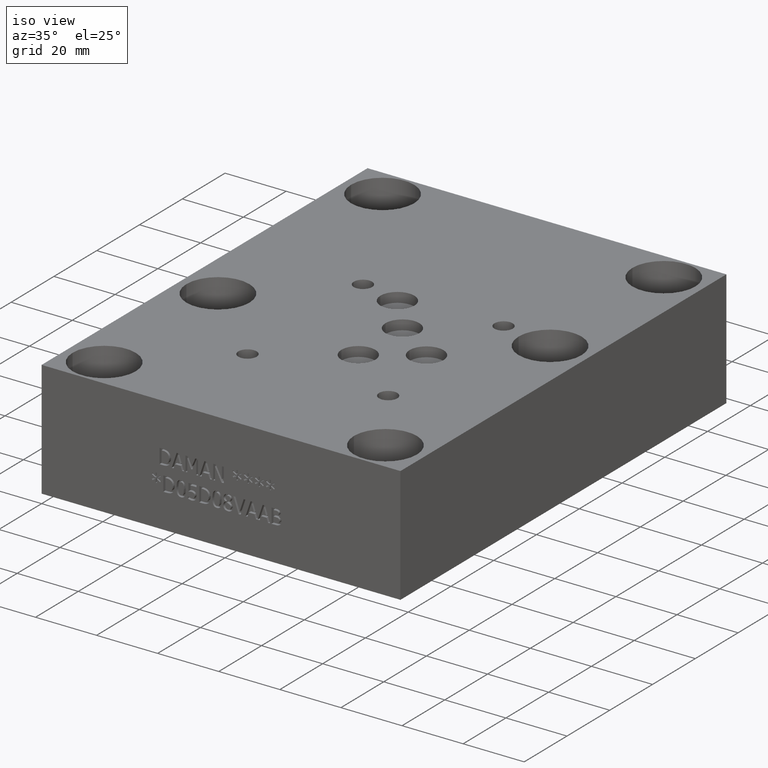
[diagram: clean part render]
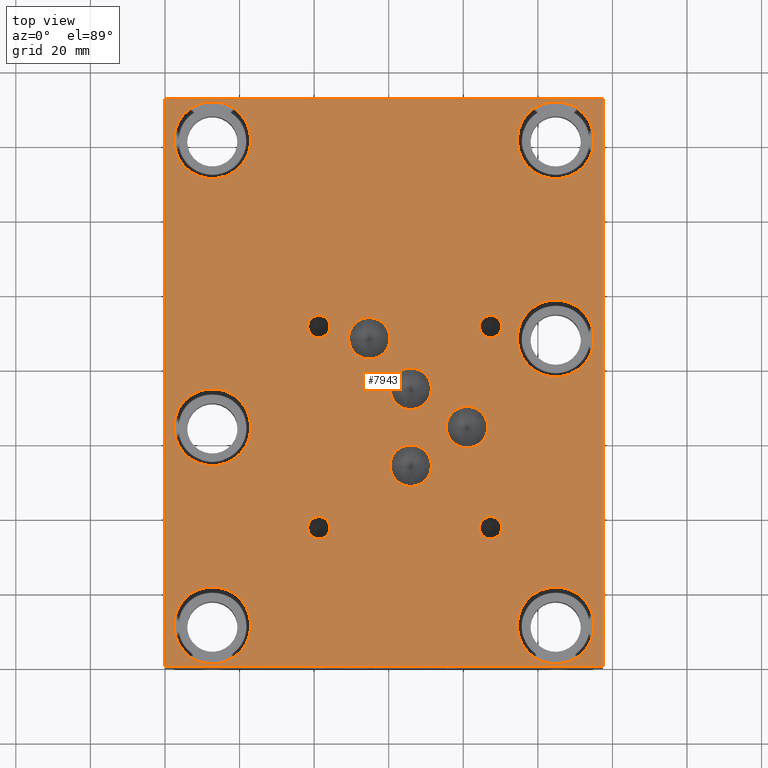
[diagram: tour spotlight — one face highlighted and labeled with its STEP entity id]
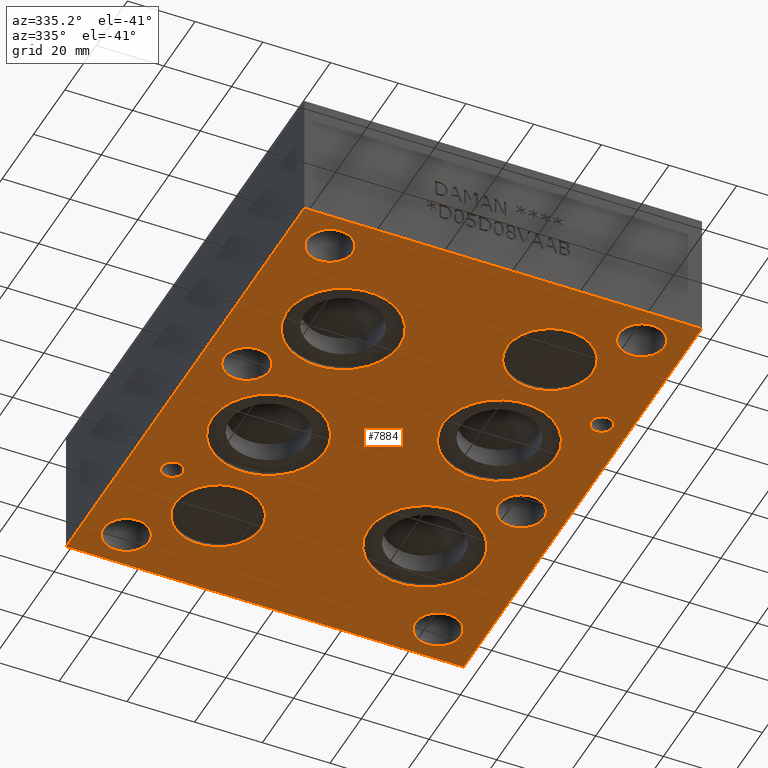
[diagram: tour spotlight — one face highlighted and labeled with its STEP entity id]
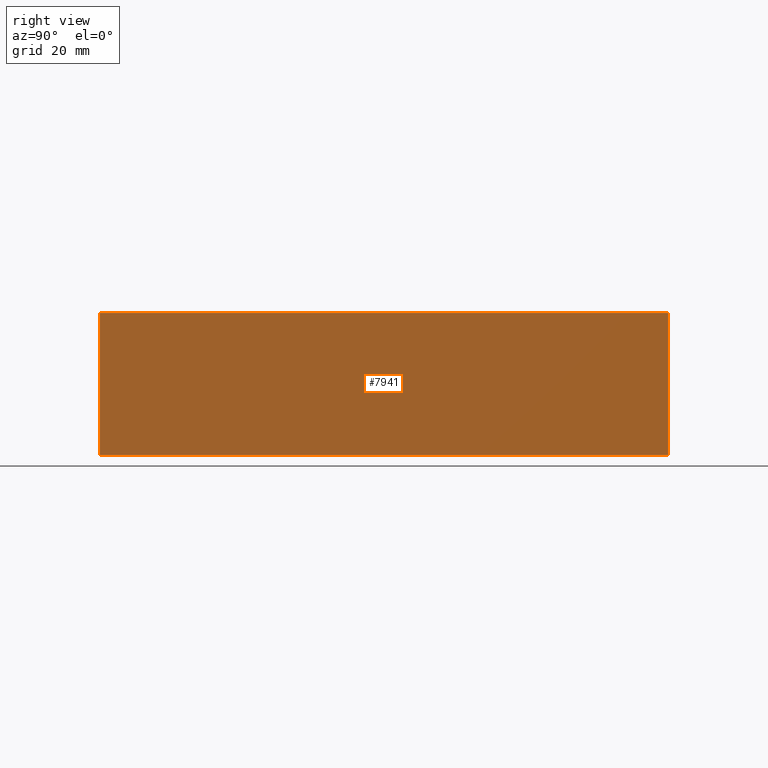
[diagram: tour spotlight — one face highlighted and labeled with its STEP entity id]
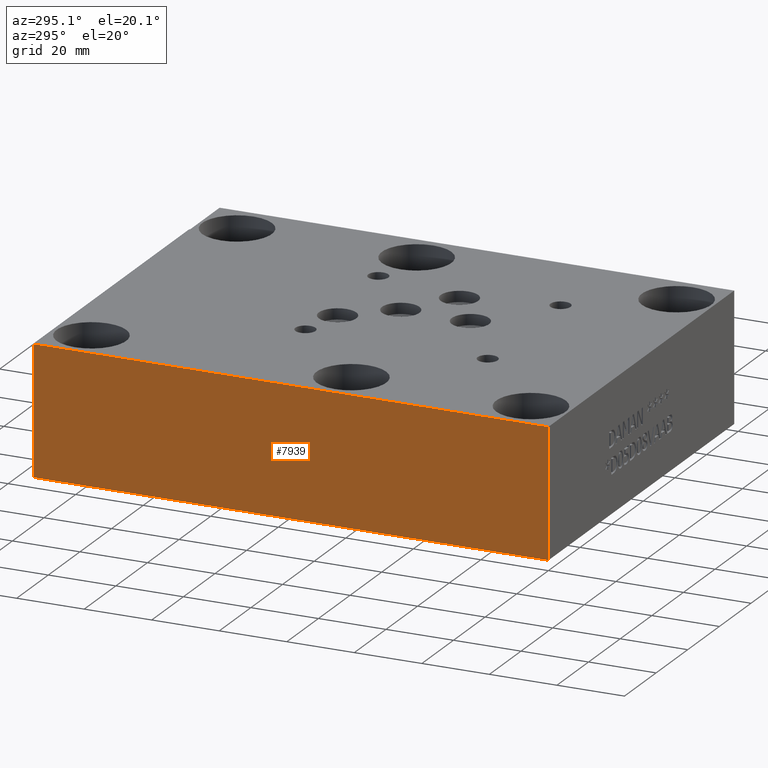
[diagram: tour spotlight — one face highlighted and labeled with its STEP entity id]
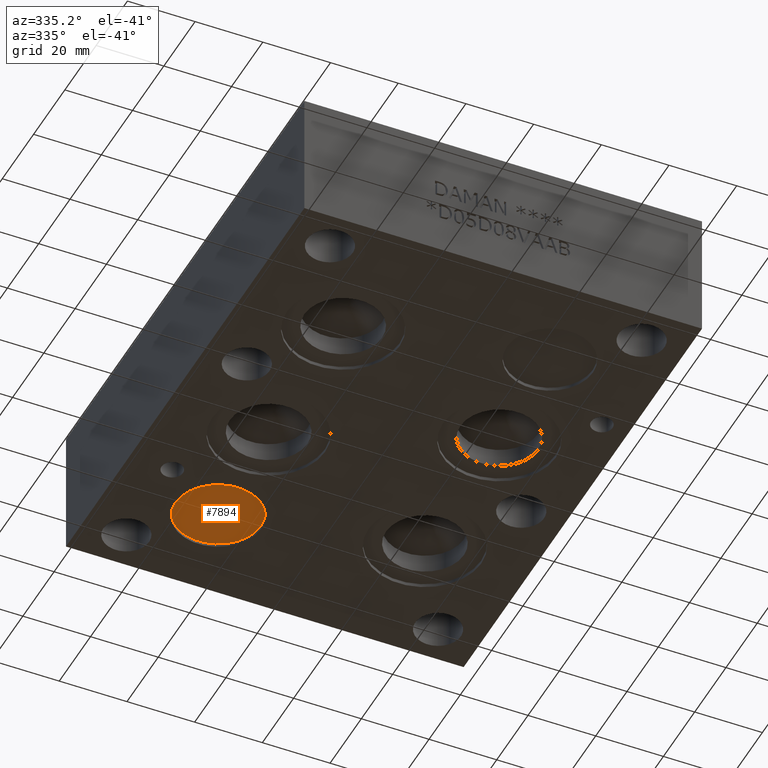
[diagram: tour spotlight — one face highlighted and labeled with its STEP entity id]
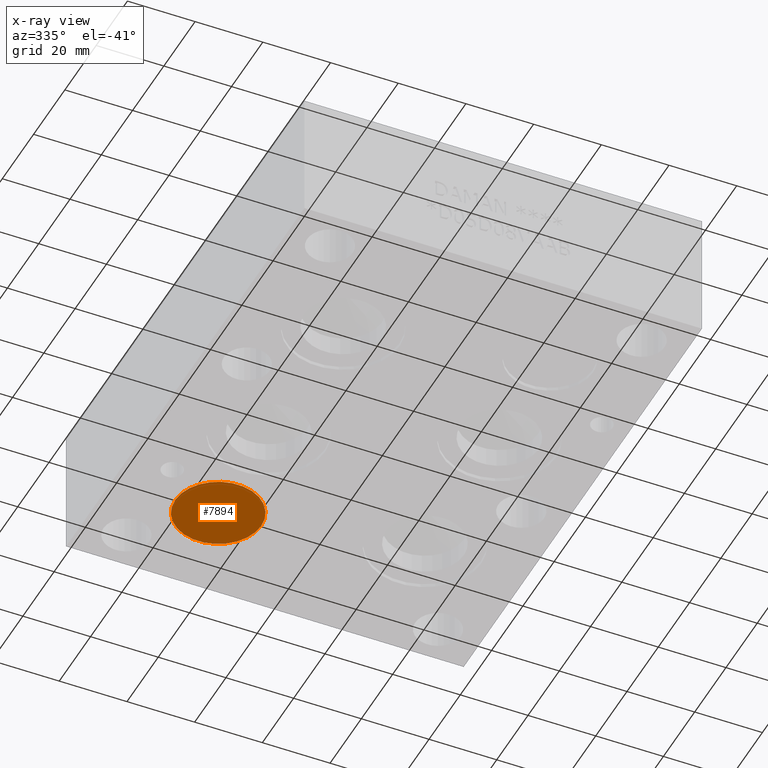
[diagram: x-ray of the same camera — body ghosted, this tour face saturated]
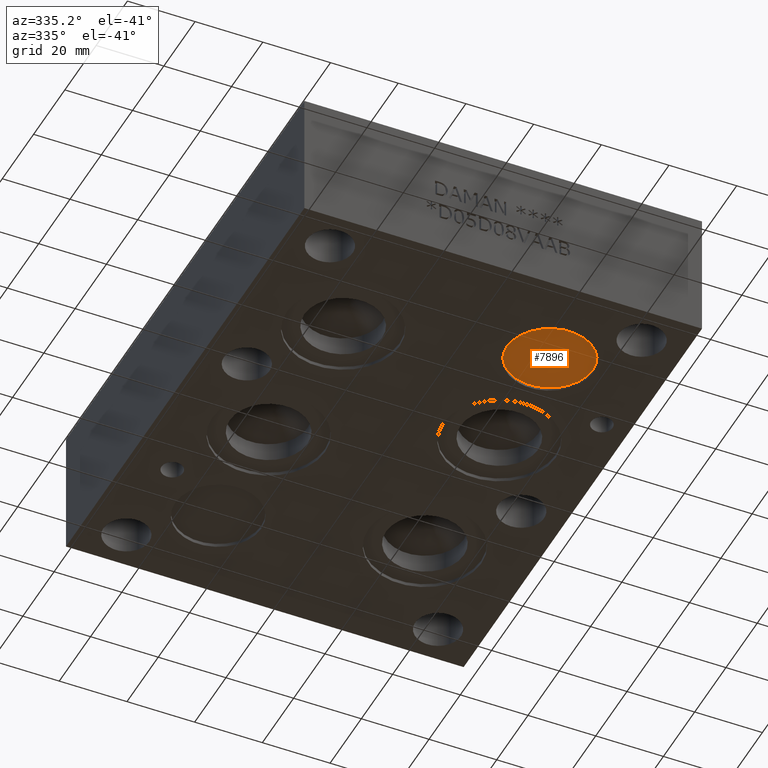
[diagram: tour spotlight — one face highlighted and labeled with its STEP entity id]
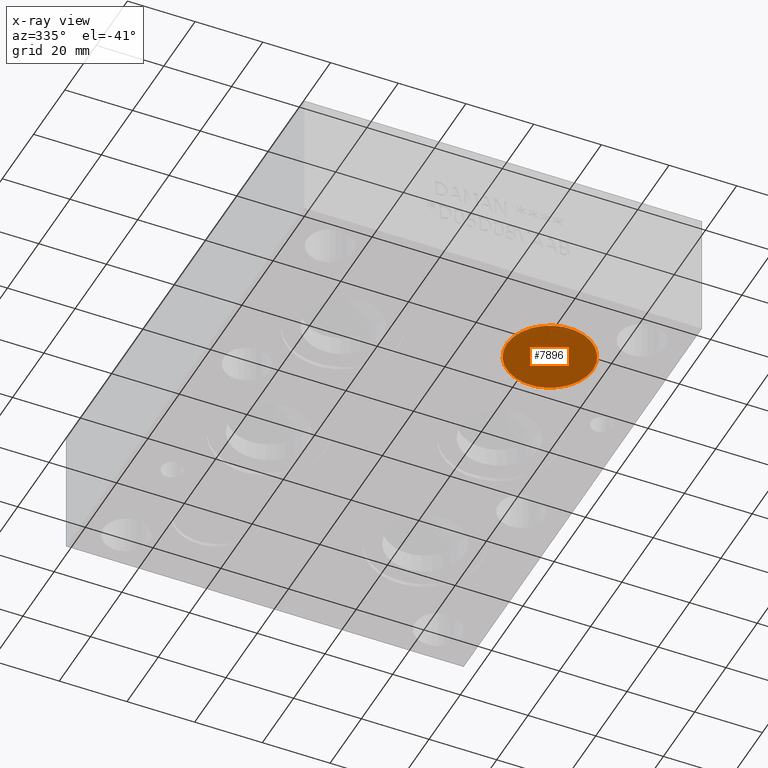
[diagram: x-ray of the same camera — body ghosted, this tour face saturated]
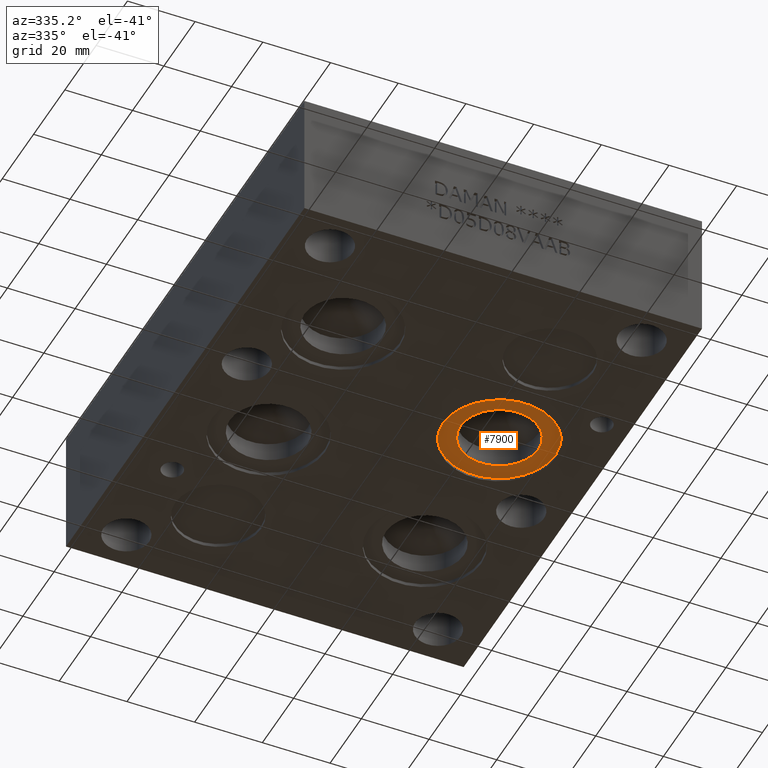
[diagram: tour spotlight — one face highlighted and labeled with its STEP entity id]
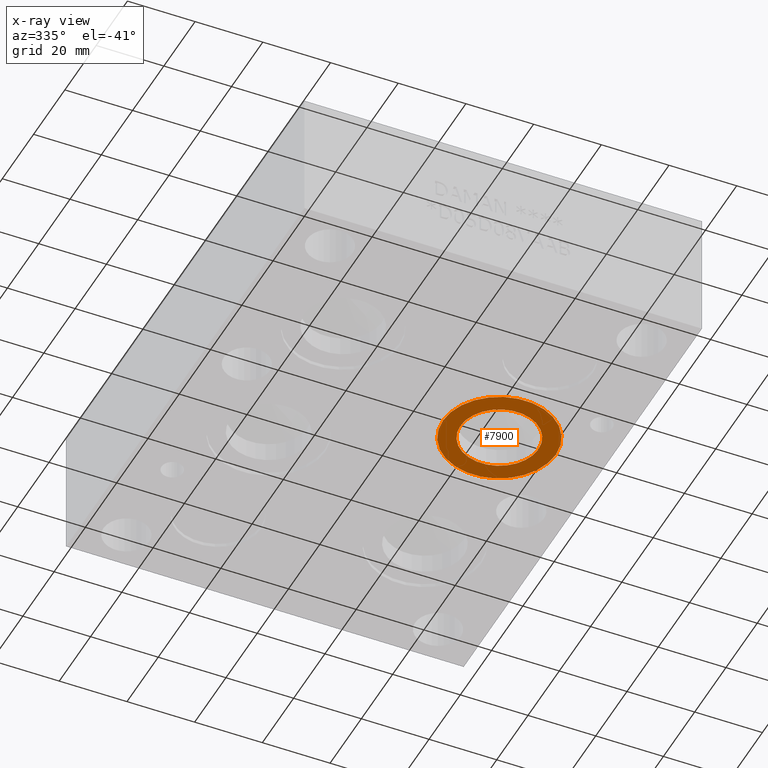
[diagram: x-ray of the same camera — body ghosted, this tour face saturated]
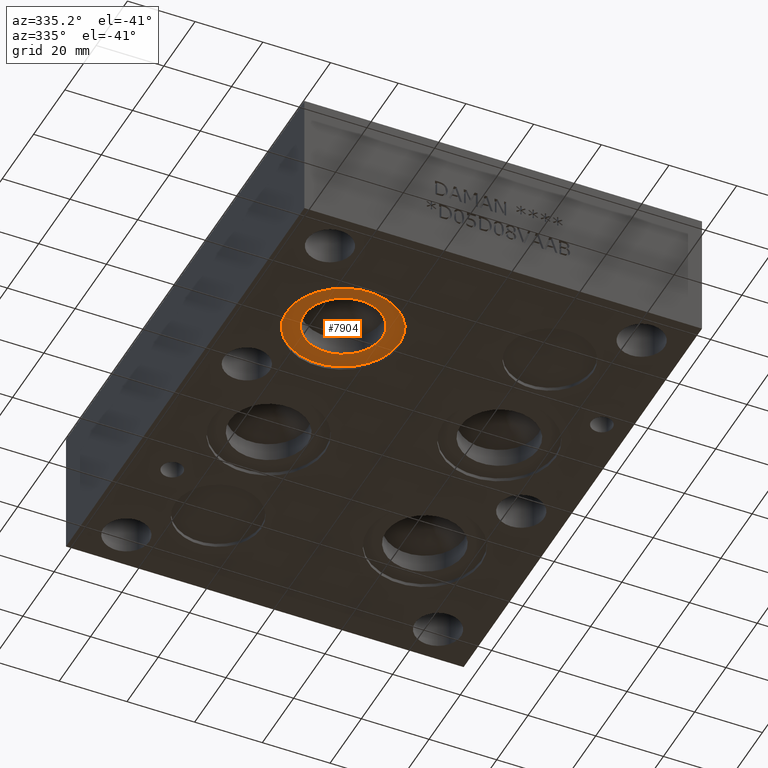
[diagram: tour spotlight — one face highlighted and labeled with its STEP entity id]
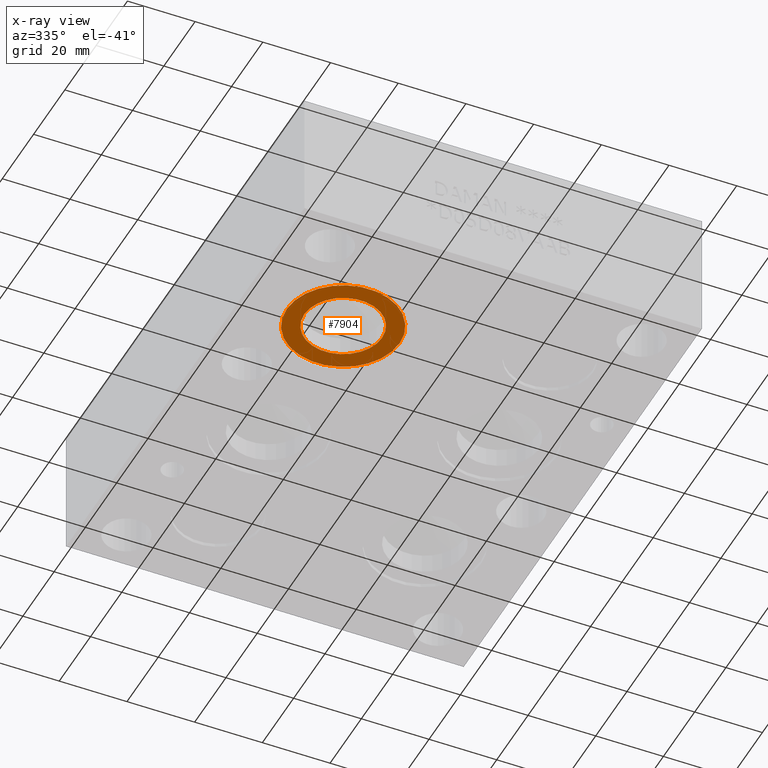
[diagram: x-ray of the same camera — body ghosted, this tour face saturated]
A machine part: a face-by-face anatomy tour. The part has 404 B-rep faces; the first image is the clean iso view, then the 8 largest visible faces are spotlighted one at a time (largest first), each with its STEP entity span.

Face 1 — top view, entity #7943. In plain terms, the highlighted planar face has unit normal (0, 0, 1).
Definition (entity closure, byte-faithful):
#33=CIRCLE('',#8198,10.3124);
#34=CIRCLE('',#8199,10.3124);
#40=CIRCLE('',#8208,10.3124);
#41=CIRCLE('',#8209,10.3124);
#47=CIRCLE('',#8218,10.3124);
#48=CIRCLE('',#8219,10.3124);
#54=CIRCLE('',#8228,10.3124);
#55=CIRCLE('',#8229,10.3124);
#61=CIRCLE('',#8238,10.3124);
#62=CIRCLE('',#8239,10.3124);
#68=CIRCLE('',#8248,10.3124);
#69=CIRCLE('',#8249,10.3124);
#122=CIRCLE('',#8335,5.55625);
#123=CIRCLE('',#8336,5.55625);
#126=CIRCLE('',#8341,5.55625);
#127=CIRCLE('',#8342,5.55625);
#130=CIRCLE('',#8347,5.5626);
#131=CIRCLE('',#8348,5.5626);
#134=CIRCLE('',#8353,5.5626);
#135=CIRCLE('',#8354,5.5626);
#141=CIRCLE('',#8363,2.9972);
#142=CIRCLE('',#8364,2.9972);
#148=CIRCLE('',#8374,2.9972);
#149=CIRCLE('',#8375,2.9972);
#155=CIRCLE('',#8385,2.9972);
#156=CIRCLE('',#8386,2.9972);
#162=CIRCLE('',#8396,2.9972);
#163=CIRCLE('',#8397,2.9972);
#266=FACE_BOUND('',#1430,.T.);
#267=FACE_BOUND('',#1431,.T.);
#268=FACE_BOUND('',#1432,.T.);
#269=FACE_BOUND('',#1433,.T.);
#270=FACE_BOUND('',#1434,.T.);
#271=FACE_BOUND('',#1435,.T.);
#272=FACE_BOUND('',#1436,.T.);
#273=FACE_BOUND('',#1437,.T.);
#274=FACE_BOUND('',#1438,.T.);
#275=FACE_BOUND('',#1439,.T.);
#276=FACE_BOUND('',#1440,.T.);
#277=FACE_BOUND('',#1441,.T.);
#278=FACE_BOUND('',#1442,.T.);
#279=FACE_BOUND('',#1443,.T.);
#965=FACE_OUTER_BOUND('',#1429,.T.);
#1429=EDGE_LOOP('',(#6940,#6941,#6942,#6943));
#1430=EDGE_LOOP('',(#6944,#6945));
#1431=EDGE_LOOP('',(#6946,#6947));
#1432=EDGE_LOOP('',(#6948,#6949));
#1433=EDGE_LOOP('',(#6950,#6951));
#1434=EDGE_LOOP('',(#6952,#6953));
#1435=EDGE_LOOP('',(#6954,#6955));
#1436=EDGE_LOOP('',(#6956,#6957));
#1437=EDGE_LOOP('',(#6958,#6959));
#1438=EDGE_LOOP('',(#6960,#6961));
#1439=EDGE_LOOP('',(#6962,#6963));
#1440=EDGE_LOOP('',(#6964,#6965));
#1441=EDGE_LOOP('',(#6966,#6967));
#1442=EDGE_LOOP('',(#6968,#6969));
#1443=EDGE_LOOP('',(#6970,#6971));
#1763=LINE('',#12174,#2525);
#2201=LINE('',#13509,#2963);
#2203=LINE('',#13513,#2965);
#2205=LINE('',#13516,#2967);
#2525=VECTOR('',#8901,10.);
#2963=VECTOR('',#10047,10.);
#2965=VECTOR('',#10051,10.);
#2967=VECTOR('',#10055,10.);
#3296=VERTEX_POINT('',#12171);
#3297=VERTEX_POINT('',#12173);
#3566=VERTEX_POINT('',#13103);
#3567=VERTEX_POINT('',#13104);
#3574=VERTEX_POINT('',#13124);
#3575=VERTEX_POINT('',#13125);
#3582=VERTEX_POINT('',#13145);
#3583=VERTEX_POINT('',#13146);
#3590=VERTEX_POINT('',#13166);
#3591=VERTEX_POINT('',#13167);
#3598=VERTEX_POINT('',#13187);
#3599=VERTEX_POINT('',#13188);
#3606=VERTEX_POINT('',#13208);
#3607=VERTEX_POINT('',#13209);
#3663=VERTEX_POINT('',#13375);
#3664=VERTEX_POINT('',#13376);
#3668=VERTEX_POINT('',#13388);
#3669=VERTEX_POINT('',#13389);
#3673=VERTEX_POINT('',#13401);
#3674=VERTEX_POINT('',#13402);
#3678=VERTEX_POINT('',#13414);
#3679=VERTEX_POINT('',#13415);
#3686=VERTEX_POINT('',#13434);
#3687=VERTEX_POINT('',#13435);
#3694=VERTEX_POINT('',#13456);
#3695=VERTEX_POINT('',#13457);
#3702=VERTEX_POINT('',#13478);
#3703=VERTEX_POINT('',#13479);
#3710=VERTEX_POINT('',#13500);
#3711=VERTEX_POINT('',#13501);
#3712=VERTEX_POINT('',#13508);
#3713=VERTEX_POINT('',#13512);
#4205=EDGE_CURVE('',#3297,#3296,#1763,.T.);
#4607=EDGE_CURVE('',#3566,#3567,#33,.T.);
#4608=EDGE_CURVE('',#3567,#3566,#34,.T.);
#4617=EDGE_CURVE('',#3574,#3575,#40,.T.);
#4618=EDGE_CURVE('',#3575,#3574,#41,.T.);
#4627=EDGE_CURVE('',#3582,#3583,#47,.T.);
#4628=EDGE_CURVE('',#3583,#3582,#48,.T.);
#4637=EDGE_CURVE('',#3590,#3591,#54,.T.);
#4638=EDGE_CURVE('',#3591,#3590,#55,.T.);
#4647=EDGE_CURVE('',#3598,#3599,#61,.T.);
#4648=EDGE_CURVE('',#3599,#3598,#62,.T.);
#4657=EDGE_CURVE('',#3606,#3607,#68,.T.);
#4658=EDGE_CURVE('',#3607,#3606,#69,.T.);
#4734=EDGE_CURVE('',#3663,#3664,#122,.T.);
#4735=EDGE_CURVE('',#3664,#3663,#123,.T.);
#4740=EDGE_CURVE('',#3668,#3669,#126,.T.);
#4741=EDGE_CURVE('',#3669,#3668,#127,.T.);
#4746=EDGE_CURVE('',#3673,#3674,#130,.T.);
#4747=EDGE_CURVE('',#3674,#3673,#131,.T.);
#4752=EDGE_CURVE('',#3678,#3679,#134,.T.);
#4753=EDGE_CURVE('',#3679,#3678,#135,.T.);
#4761=EDGE_CURVE('',#3686,#3687,#141,.T.);
#4762=EDGE_CURVE('',#3687,#3686,#142,.T.);
#4771=EDGE_CURVE('',#3694,#3695,#148,.T.);
#4772=EDGE_CURVE('',#3695,#3694,#149,.T.);
#4781=EDGE_CURVE('',#3702,#3703,#155,.T.);
#4782=EDGE_CURVE('',#3703,#3702,#156,.T.);
#4791=EDGE_CURVE('',#3710,#3711,#162,.T.);
#4792=EDGE_CURVE('',#3711,#3710,#163,.T.);
#4795=EDGE_CURVE('',#3712,#3297,#2201,.T.);
#4797=EDGE_CURVE('',#3713,#3712,#2203,.T.);
#4799=EDGE_CURVE('',#3296,#3713,#2205,.T.);
#6940=ORIENTED_EDGE('',*,*,#4205,.T.);
#6941=ORIENTED_EDGE('',*,*,#4799,.T.);
#6942=ORIENTED_EDGE('',*,*,#4797,.T.);
#6943=ORIENTED_EDGE('',*,*,#4795,.T.);
#6944=ORIENTED_EDGE('',*,*,#4607,.T.);
#6945=ORIENTED_EDGE('',*,*,#4608,.T.);
#6946=ORIENTED_EDGE('',*,*,#4617,.T.);
#6947=ORIENTED_EDGE('',*,*,#4618,.T.);
#6948=ORIENTED_EDGE('',*,*,#4627,.T.);
#6949=ORIENTED_EDGE('',*,*,#4628,.T.);
#6950=ORIENTED_EDGE('',*,*,#4637,.T.);
#6951=ORIENTED_EDGE('',*,*,#4638,.T.);
#6952=ORIENTED_EDGE('',*,*,#4647,.T.);
#6953=ORIENTED_EDGE('',*,*,#4648,.T.);
#6954=ORIENTED_EDGE('',*,*,#4657,.T.);
#6955=ORIENTED_EDGE('',*,*,#4658,.T.);
#6956=ORIENTED_EDGE('',*,*,#4734,.T.);
#6957=ORIENTED_EDGE('',*,*,#4735,.T.);
#6958=ORIENTED_EDGE('',*,*,#4740,.T.);
#6959=ORIENTED_EDGE('',*,*,#4741,.T.);
#6960=ORIENTED_EDGE('',*,*,#4746,.T.);
#6961=ORIENTED_EDGE('',*,*,#4747,.T.);
#6962=ORIENTED_EDGE('',*,*,#4752,.T.);
#6963=ORIENTED_EDGE('',*,*,#4753,.T.);
#6964=ORIENTED_EDGE('',*,*,#4761,.T.);
#6965=ORIENTED_EDGE('',*,*,#4762,.T.);
#6966=ORIENTED_EDGE('',*,*,#4771,.T.);
#6967=ORIENTED_EDGE('',*,*,#4772,.T.);
#6968=ORIENTED_EDGE('',*,*,#4781,.T.);
#6969=ORIENTED_EDGE('',*,*,#4782,.T.);
#6970=ORIENTED_EDGE('',*,*,#4791,.T.);
#6971=ORIENTED_EDGE('',*,*,#4792,.T.);
#7225=PLANE('',#8403);
#7943=ADVANCED_FACE('',(#965,#266,#267,#268,#269,#270,#271,#272,#273,#274,
#275,#276,#277,#278,#279),#7225,.T.);
#8198=AXIS2_PLACEMENT_3D('',#13105,#9586,#9587);
#8199=AXIS2_PLACEMENT_3D('',#13106,#9588,#9589);
#8208=AXIS2_PLACEMENT_3D('',#13126,#9609,#9610);
#8209=AXIS2_PLACEMENT_3D('',#13127,#9611,#9612);
#8218=AXIS2_PLACEMENT_3D('',#13147,#9632,#9633);
#8219=AXIS2_PLACEMENT_3D('',#13148,#9634,#9635);
#8228=AXIS2_PLACEMENT_3D('',#13168,#9655,#9656);
#8229=AXIS2_PLACEMENT_3D('',#13169,#9657,#9658);
#8238=AXIS2_PLACEMENT_3D('',#13189,#9678,#9679);
#8239=AXIS2_PLACEMENT_3D('',#13190,#9680,#9681);
#8248=AXIS2_PLACEMENT_3D('',#13210,#9701,#9702);
#8249=AXIS2_PLACEMENT_3D('',#13211,#9703,#9704);
#8335=AXIS2_PLACEMENT_3D('',#13377,#9898,#9899);
#8336=AXIS2_PLACEMENT_3D('',#13378,#9900,#9901);
#8341=AXIS2_PLACEMENT_3D('',#13390,#9912,#9913);
#8342=AXIS2_PLACEMENT_3D('',#13391,#9914,#9915);
#8347=AXIS2_PLACEMENT_3D('',#13403,#9926,#9927);
#8348=AXIS2_PLACEMENT_3D('',#13404,#9928,#9929);
#8353=AXIS2_PLACEMENT_3D('',#13416,#9940,#9941);
#8354=AXIS2_PLACEMENT_3D('',#13417,#9942,#9943);
#8363=AXIS2_PLACEMENT_3D('',#13436,#9962,#9963);
#8364=AXIS2_PLACEMENT_3D('',#13437,#9964,#9965);
#8374=AXIS2_PLACEMENT_3D('',#13458,#9987,#9988);
#8375=AXIS2_PLACEMENT_3D('',#13459,#9989,#9990);
#8385=AXIS2_PLACEMENT_3D('',#13480,#10012,#10013);
#8386=AXIS2_PLACEMENT_3D('',#13481,#10014,#10015);
#8396=AXIS2_PLACEMENT_3D('',#13502,#10037,#10038);
#8397=AXIS2_PLACEMENT_3D('',#13503,#10039,#10040);
#8403=AXIS2_PLACEMENT_3D('',#13518,#10058,#10059);
#8901=DIRECTION('',(1.,0.,0.));
#9586=DIRECTION('center_axis',(0.,0.,-1.));
#9587=DIRECTION('ref_axis',(1.,0.,0.));
#9588=DIRECTION('center_axis',(0.,0.,-1.));
#9589=DIRECTION('ref_axis',(1.,0.,0.));
#9609=DIRECTION('center_axis',(0.,0.,-1.));
#9610=DIRECTION('ref_axis',(1.,0.,0.));
#9611=DIRECTION('center_axis',(0.,0.,-1.));
#9612=DIRECTION('ref_axis',(1.,0.,0.));
#9632=DIRECTION('center_axis',(0.,0.,-1.));
#9633=DIRECTION('ref_axis',(1.,0.,0.));
#9634=DIRECTION('center_axis',(0.,0.,-1.));
#9635=DIRECTION('ref_axis',(1.,0.,0.));
#9655=DIRECTION('center_axis',(0.,0.,-1.));
#9656=DIRECTION('ref_axis',(1.,0.,0.));
#9657=DIRECTION('center_axis',(0.,0.,-1.));
#9658=DIRECTION('ref_axis',(1.,0.,0.));
#9678=DIRECTION('center_axis',(0.,0.,-1.));
#9679=DIRECTION('ref_axis',(1.,0.,0.));
#9680=DIRECTION('center_axis',(0.,0.,-1.));
#9681=DIRECTION('ref_axis',(1.,0.,0.));
#9701=DIRECTION('center_axis',(0.,0.,-1.));
#9702=DIRECTION('ref_axis',(1.,0.,0.));
#9703=DIRECTION('center_axis',(0.,0.,-1.));
#9704=DIRECTION('ref_axis',(1.,0.,0.));
#9898=DIRECTION('center_axis',(0.,0.,-1.));
#9899=DIRECTION('ref_axis',(1.,0.,0.));
#9900=DIRECTION('center_axis',(0.,0.,-1.));
#9901=DIRECTION('ref_axis',(1.,0.,0.));
#9912=DIRECTION('center_axis',(0.,0.,-1.));
#9913=DIRECTION('ref_axis',(1.,0.,0.));
#9914=DIRECTION('center_axis',(0.,0.,-1.));
#9915=DIRECTION('ref_axis',(1.,0.,0.));
#9926=DIRECTION('center_axis',(0.,0.,-1.));
#9927=DIRECTION('ref_axis',(1.,0.,0.));
#9928=DIRECTION('center_axis',(0.,0.,-1.));
#9929=DIRECTION('ref_axis',(1.,0.,0.));
#9940=DIRECTION('center_axis',(0.,0.,-1.));
#9941=DIRECTION('ref_axis',(1.,0.,0.));
#9942=DIRECTION('center_axis',(0.,0.,-1.));
#9943=DIRECTION('ref_axis',(1.,0.,0.));
#9962=DIRECTION('center_axis',(0.,0.,-1.));
#9963=DIRECTION('ref_axis',(1.,0.,0.));
#9964=DIRECTION('center_axis',(0.,0.,-1.));
#9965=DIRECTION('ref_axis',(1.,0.,0.));
#9987=DIRECTION('center_axis',(0.,0.,-1.));
#9988=DIRECTION('ref_axis',(1.,0.,0.));
#9989=DIRECTION('center_axis',(0.,0.,-1.));
#9990=DIRECTION('ref_axis',(1.,0.,0.));
#10012=DIRECTION('center_axis',(0.,0.,-1.));
#10013=DIRECTION('ref_axis',(1.,0.,0.));
#10014=DIRECTION('center_axis',(0.,0.,-1.));
#10015=DIRECTION('ref_axis',(1.,0.,0.));
#10037=DIRECTION('center_axis',(0.,0.,-1.));
#10038=DIRECTION('ref_axis',(1.,0.,0.));
#10039=DIRECTION('center_axis',(0.,0.,-1.));
#10040=DIRECTION('ref_axis',(1.,0.,0.));
#10047=DIRECTION('',(0.,-1.,0.));
#10051=DIRECTION('',(-1.,0.,0.));
#10055=DIRECTION('',(0.,1.,0.));
#10058=DIRECTION('center_axis',(0.,0.,1.));
#10059=DIRECTION('ref_axis',(1.,0.,0.));
#12171=CARTESIAN_POINT('',(117.475,0.,38.1));
#12173=CARTESIAN_POINT('',(0.,0.,38.1));
#12174=CARTESIAN_POINT('',(0.,0.,38.1));
#13103=CARTESIAN_POINT('',(23.0124,11.1125,38.1));
#13104=CARTESIAN_POINT('',(2.3876,11.1125,38.1));
#13105=CARTESIAN_POINT('Origin',(12.7,11.1125,38.1));
#13106=CARTESIAN_POINT('Origin',(12.7,11.1125,38.1));
#13124=CARTESIAN_POINT('',(115.0874,88.10625,38.1));
#13125=CARTESIAN_POINT('',(94.4626,88.10625,38.1));
#13126=CARTESIAN_POINT('Origin',(104.775,88.10625,38.1));
#13127=CARTESIAN_POINT('Origin',(104.775,88.10625,38.1));
#13145=CARTESIAN_POINT('',(23.0124,141.2875,38.1));
#13146=CARTESIAN_POINT('',(2.3876,141.2875,38.1));
#13147=CARTESIAN_POINT('Origin',(12.7,141.2875,38.1));
#13148=CARTESIAN_POINT('Origin',(12.7,141.2875,38.1));
#13166=CARTESIAN_POINT('',(115.0874,141.2875,38.1));
#13167=CARTESIAN_POINT('',(94.4626,141.2875,38.1));
#13168=CARTESIAN_POINT('Origin',(104.775,141.2875,38.1));
#13169=CARTESIAN_POINT('Origin',(104.775,141.2875,38.1));
#13187=CARTESIAN_POINT('',(115.0874,11.1125,38.1));
#13188=CARTESIAN_POINT('',(94.4626,11.1125,38.1));
#13189=CARTESIAN_POINT('Origin',(104.775,11.1125,38.1));
#13190=CARTESIAN_POINT('Origin',(104.775,11.1125,38.1));
#13208=CARTESIAN_POINT('',(23.0124,64.29375,38.1));
#13209=CARTESIAN_POINT('',(2.3876,64.29375,38.1));
#13210=CARTESIAN_POINT('Origin',(12.7,64.29375,38.1));
#13211=CARTESIAN_POINT('Origin',(12.7,64.29375,38.1));
#13375=CARTESIAN_POINT('',(71.45655,74.60488,38.1));
#13376=CARTESIAN_POINT('',(60.34405,74.60488,38.1));
#13377=CARTESIAN_POINT('Origin',(65.9003,74.60488,38.1));
#13378=CARTESIAN_POINT('Origin',(65.9003,74.60488,38.1));
#13388=CARTESIAN_POINT('',(71.46163,53.96992,38.1));
#13389=CARTESIAN_POINT('',(60.34913,53.96992,38.1));
#13390=CARTESIAN_POINT('Origin',(65.90538,53.96992,38.1));
#13391=CARTESIAN_POINT('Origin',(65.90538,53.96992,38.1));
#13401=CARTESIAN_POINT('',(86.5632,64.2874,38.1));
#13402=CARTESIAN_POINT('',(75.438,64.2874,38.1));
#13403=CARTESIAN_POINT('Origin',(81.0006,64.2874,38.1));
#13404=CARTESIAN_POINT('Origin',(81.0006,64.2874,38.1));
#13414=CARTESIAN_POINT('',(60.3504,88.1126,38.1));
#13415=CARTESIAN_POINT('',(49.2252,88.1126,38.1));
#13416=CARTESIAN_POINT('Origin',(54.7878,88.1126,38.1));
#13417=CARTESIAN_POINT('Origin',(54.7878,88.1126,38.1));
#13434=CARTESIAN_POINT('',(90.3224,37.3253,38.1));
#13435=CARTESIAN_POINT('',(84.328,37.3253,38.1));
#13436=CARTESIAN_POINT('Origin',(87.3252,37.3253,38.1));
#13437=CARTESIAN_POINT('Origin',(87.3252,37.3253,38.1));
#13456=CARTESIAN_POINT('',(44.2722,91.2876,38.1));
#13457=CARTESIAN_POINT('',(38.2778,91.2876,38.1));
#13458=CARTESIAN_POINT('Origin',(41.275,91.2876,38.1));
#13459=CARTESIAN_POINT('Origin',(41.275,91.2876,38.1));
#13478=CARTESIAN_POINT('',(90.3224,91.2876,38.1));
#13479=CARTESIAN_POINT('',(84.328,91.2876,38.1));
#13480=CARTESIAN_POINT('Origin',(87.3252,91.2876,38.1));
#13481=CARTESIAN_POINT('Origin',(87.3252,91.2876,38.1));
#13500=CARTESIAN_POINT('',(44.2722,37.3126,38.1));
#13501=CARTESIAN_POINT('',(38.2778,37.3126,38.1));
#13502=CARTESIAN_POINT('Origin',(41.275,37.3126,38.1));
#13503=CARTESIAN_POINT('Origin',(41.275,37.3126,38.1));
#13508=CARTESIAN_POINT('',(0.,152.4,38.1));
#13509=CARTESIAN_POINT('',(0.,152.4,38.1));
#13512=CARTESIAN_POINT('',(117.475,152.4,38.1));
#13513=CARTESIAN_POINT('',(117.475,152.4,38.1));
#13516=CARTESIAN_POINT('',(117.475,0.,38.1));
#13518=CARTESIAN_POINT('Origin',(58.7375,76.2,38.1));

Face 2 — auxiliary view, entity #7884. In plain terms, the highlighted planar face has unit normal (0, 0, 1).
Definition (entity closure, byte-faithful):
#29=CIRCLE('',#8192,6.7437);
#36=CIRCLE('',#8202,6.7437);
#43=CIRCLE('',#8212,6.7437);
#50=CIRCLE('',#8222,6.7437);
#57=CIRCLE('',#8232,6.7437);
#64=CIRCLE('',#8242,6.7437);
#70=CIRCLE('',#8251,12.7);
#71=CIRCLE('',#8252,12.7);
#72=CIRCLE('',#8253,12.7);
#73=CIRCLE('',#8254,12.7);
#74=CIRCLE('',#8255,16.6751);
#75=CIRCLE('',#8256,16.6751);
#76=CIRCLE('',#8257,16.6751);
#77=CIRCLE('',#8258,16.6751);
#78=CIRCLE('',#8259,16.6751);
#79=CIRCLE('',#8260,16.6751);
#80=CIRCLE('',#8261,16.6751);
#81=CIRCLE('',#8262,16.6751);
#82=CIRCLE('',#8263,3.175);
#83=CIRCLE('',#8264,3.175);
#84=CIRCLE('',#8265,3.175);
#85=CIRCLE('',#8266,3.175);
#86=CIRCLE('',#8267,6.7437);
#87=CIRCLE('',#8268,6.7437);
#88=CIRCLE('',#8269,6.7437);
#89=CIRCLE('',#8270,6.7437);
#90=CIRCLE('',#8271,6.7437);
#91=CIRCLE('',#8272,6.7437);
#244=FACE_BOUND('',#1349,.T.);
#245=FACE_BOUND('',#1350,.T.);
#246=FACE_BOUND('',#1351,.T.);
#247=FACE_BOUND('',#1352,.T.);
#248=FACE_BOUND('',#1353,.T.);
#249=FACE_BOUND('',#1354,.T.);
#250=FACE_BOUND('',#1355,.T.);
#251=FACE_BOUND('',#1356,.T.);
#252=FACE_BOUND('',#1357,.T.);
#253=FACE_BOUND('',#1358,.T.);
#254=FACE_BOUND('',#1359,.T.);
#255=FACE_BOUND('',#1360,.T.);
#256=FACE_BOUND('',#1361,.T.);
#257=FACE_BOUND('',#1362,.T.);
#906=FACE_OUTER_BOUND('',#1348,.T.);
#1348=EDGE_LOOP('',(#6649,#6650,#6651,#6652));
#1349=EDGE_LOOP('',(#6653,#6654));
#1350=EDGE_LOOP('',(#6655,#6656));
#1351=EDGE_LOOP('',(#6657,#6658));
#1352=EDGE_LOOP('',(#6659,#6660));
#1353=EDGE_LOOP('',(#6661,#6662));
#1354=EDGE_LOOP('',(#6663,#6664));
#1355=EDGE_LOOP('',(#6665,#6666));
#1356=EDGE_LOOP('',(#6667,#6668));
#1357=EDGE_LOOP('',(#6669,#6670));
#1358=EDGE_LOOP('',(#6671,#6672));
#1359=EDGE_LOOP('',(#6673,#6674));
#1360=EDGE_LOOP('',(#6675,#6676));
#1361=EDGE_LOOP('',(#6677,#6678));
#1362=EDGE_LOOP('',(#6679,#6680));
#1761=LINE('',#12170,#2523);
#2160=LINE('',#13215,#2922);
#2161=LINE('',#13217,#2923);
#2162=LINE('',#13218,#2924);
#2523=VECTOR('',#8899,10.);
#2922=VECTOR('',#9708,10.);
#2923=VECTOR('',#9709,10.);
#2924=VECTOR('',#9710,10.);
#3294=VERTEX_POINT('',#12168);
#3295=VERTEX_POINT('',#12169);
#3561=VERTEX_POINT('',#13089);
#3563=VERTEX_POINT('',#13093);
#3569=VERTEX_POINT('',#13110);
#3571=VERTEX_POINT('',#13114);
#3577=VERTEX_POINT('',#13131);
#3579=VERTEX_POINT('',#13135);
#3585=VERTEX_POINT('',#13152);
#3587=VERTEX_POINT('',#13156);
#3593=VERTEX_POINT('',#13173);
#3595=VERTEX_POINT('',#13177);
#3601=VERTEX_POINT('',#13194);
#3603=VERTEX_POINT('',#13198);
#3608=VERTEX_POINT('',#13214);
#3609=VERTEX_POINT('',#13216);
#3610=VERTEX_POINT('',#13219);
#3611=VERTEX_POINT('',#13220);
#3612=VERTEX_POINT('',#13223);
#3613=VERTEX_POINT('',#13224);
#3614=VERTEX_POINT('',#13227);
#3615=VERTEX_POINT('',#13228);
#3616=VERTEX_POINT('',#13231);
#3617=VERTEX_POINT('',#13232);
#3618=VERTEX_POINT('',#13235);
#3619=VERTEX_POINT('',#13236);
#3620=VERTEX_POINT('',#13239);
#3621=VERTEX_POINT('',#13240);
#3622=VERTEX_POINT('',#13243);
#3623=VERTEX_POINT('',#13244);
#3624=VERTEX_POINT('',#13247);
#3625=VERTEX_POINT('',#13248);
#4203=EDGE_CURVE('',#3294,#3295,#1761,.T.);
#4603=EDGE_CURVE('',#3561,#3563,#29,.T.);
#4613=EDGE_CURVE('',#3569,#3571,#36,.T.);
#4623=EDGE_CURVE('',#3577,#3579,#43,.T.);
#4633=EDGE_CURVE('',#3585,#3587,#50,.T.);
#4643=EDGE_CURVE('',#3593,#3595,#57,.T.);
#4653=EDGE_CURVE('',#3601,#3603,#64,.T.);
#4660=EDGE_CURVE('',#3608,#3294,#2160,.T.);
#4661=EDGE_CURVE('',#3609,#3608,#2161,.T.);
#4662=EDGE_CURVE('',#3295,#3609,#2162,.T.);
#4663=EDGE_CURVE('',#3610,#3611,#70,.T.);
#4664=EDGE_CURVE('',#3611,#3610,#71,.T.);
#4665=EDGE_CURVE('',#3612,#3613,#72,.T.);
#4666=EDGE_CURVE('',#3613,#3612,#73,.T.);
#4667=EDGE_CURVE('',#3614,#3615,#74,.T.);
#4668=EDGE_CURVE('',#3615,#3614,#75,.T.);
#4669=EDGE_CURVE('',#3616,#3617,#76,.T.);
#4670=EDGE_CURVE('',#3617,#3616,#77,.T.);
#4671=EDGE_CURVE('',#3618,#3619,#78,.T.);
#4672=EDGE_CURVE('',#3619,#3618,#79,.T.);
#4673=EDGE_CURVE('',#3620,#3621,#80,.T.);
#4674=EDGE_CURVE('',#3621,#3620,#81,.T.);
#4675=EDGE_CURVE('',#3622,#3623,#82,.T.);
#4676=EDGE_CURVE('',#3623,#3622,#83,.T.);
#4677=EDGE_CURVE('',#3624,#3625,#84,.T.);
#4678=EDGE_CURVE('',#3625,#3624,#85,.T.);
#4679=EDGE_CURVE('',#3563,#3561,#86,.T.);
#4680=EDGE_CURVE('',#3571,#3569,#87,.T.);
#4681=EDGE_CURVE('',#3579,#3577,#88,.T.);
#4682=EDGE_CURVE('',#3587,#3585,#89,.T.);
#4683=EDGE_CURVE('',#3595,#3593,#90,.T.);
#4684=EDGE_CURVE('',#3603,#3601,#91,.T.);
#6649=ORIENTED_EDGE('',*,*,#4203,.F.);
#6650=ORIENTED_EDGE('',*,*,#4660,.F.);
#6651=ORIENTED_EDGE('',*,*,#4661,.F.);
#6652=ORIENTED_EDGE('',*,*,#4662,.F.);
#6653=ORIENTED_EDGE('',*,*,#4663,.T.);
#6654=ORIENTED_EDGE('',*,*,#4664,.T.);
#6655=ORIENTED_EDGE('',*,*,#4665,.T.);
#6656=ORIENTED_EDGE('',*,*,#4666,.T.);
#6657=ORIENTED_EDGE('',*,*,#4667,.T.);
#6658=ORIENTED_EDGE('',*,*,#4668,.T.);
#6659=ORIENTED_EDGE('',*,*,#4669,.T.);
#6660=ORIENTED_EDGE('',*,*,#4670,.T.);
#6661=ORIENTED_EDGE('',*,*,#4671,.T.);
#6662=ORIENTED_EDGE('',*,*,#4672,.T.);
#6663=ORIENTED_EDGE('',*,*,#4673,.T.);
#6664=ORIENTED_EDGE('',*,*,#4674,.T.);
#6665=ORIENTED_EDGE('',*,*,#4675,.T.);
#6666=ORIENTED_EDGE('',*,*,#4676,.T.);
#6667=ORIENTED_EDGE('',*,*,#4677,.T.);
#6668=ORIENTED_EDGE('',*,*,#4678,.T.);
#6669=ORIENTED_EDGE('',*,*,#4603,.T.);
#6670=ORIENTED_EDGE('',*,*,#4679,.T.);
#6671=ORIENTED_EDGE('',*,*,#4613,.T.);
#6672=ORIENTED_EDGE('',*,*,#4680,.T.);
#6673=ORIENTED_EDGE('',*,*,#4623,.T.);
#6674=ORIENTED_EDGE('',*,*,#4681,.T.);
#6675=ORIENTED_EDGE('',*,*,#4633,.T.);
#6676=ORIENTED_EDGE('',*,*,#4682,.T.);
#6677=ORIENTED_EDGE('',*,*,#4643,.T.);
#6678=ORIENTED_EDGE('',*,*,#4683,.T.);
#6679=ORIENTED_EDGE('',*,*,#4653,.T.);
#6680=ORIENTED_EDGE('',*,*,#4684,.T.);
#7210=PLANE('',#8250);
#7884=ADVANCED_FACE('',(#906,#244,#245,#246,#247,#248,#249,#250,#251,#252,
#253,#254,#255,#256,#257),#7210,.F.);
#8192=AXIS2_PLACEMENT_3D('',#13095,#9574,#9575);
#8202=AXIS2_PLACEMENT_3D('',#13116,#9597,#9598);
#8212=AXIS2_PLACEMENT_3D('',#13137,#9620,#9621);
#8222=AXIS2_PLACEMENT_3D('',#13158,#9643,#9644);
#8232=AXIS2_PLACEMENT_3D('',#13179,#9666,#9667);
#8242=AXIS2_PLACEMENT_3D('',#13200,#9689,#9690);
#8250=AXIS2_PLACEMENT_3D('',#13213,#9706,#9707);
#8251=AXIS2_PLACEMENT_3D('',#13221,#9711,#9712);
#8252=AXIS2_PLACEMENT_3D('',#13222,#9713,#9714);
#8253=AXIS2_PLACEMENT_3D('',#13225,#9715,#9716);
#8254=AXIS2_PLACEMENT_3D('',#13226,#9717,#9718);
#8255=AXIS2_PLACEMENT_3D('',#13229,#9719,#9720);
#8256=AXIS2_PLACEMENT_3D('',#13230,#9721,#9722);
#8257=AXIS2_PLACEMENT_3D('',#13233,#9723,#9724);
#8258=AXIS2_PLACEMENT_3D('',#13234,#9725,#9726);
#8259=AXIS2_PLACEMENT_3D('',#13237,#9727,#9728);
#8260=AXIS2_PLACEMENT_3D('',#13238,#9729,#9730);
#8261=AXIS2_PLACEMENT_3D('',#13241,#9731,#9732);
#8262=AXIS2_PLACEMENT_3D('',#13242,#9733,#9734);
#8263=AXIS2_PLACEMENT_3D('',#13245,#9735,#9736);
#8264=AXIS2_PLACEMENT_3D('',#13246,#9737,#9738);
#8265=AXIS2_PLACEMENT_3D('',#13249,#9739,#9740);
#8266=AXIS2_PLACEMENT_3D('',#13250,#9741,#9742);
#8267=AXIS2_PLACEMENT_3D('',#13251,#9743,#9744);
#8268=AXIS2_PLACEMENT_3D('',#13252,#9745,#9746);
#8269=AXIS2_PLACEMENT_3D('',#13253,#9747,#9748);
#8270=AXIS2_PLACEMENT_3D('',#13254,#9749,#9750);
#8271=AXIS2_PLACEMENT_3D('',#13255,#9751,#9752);
#8272=AXIS2_PLACEMENT_3D('',#13256,#9753,#9754);
#8899=DIRECTION('',(1.,0.,0.));
#9574=DIRECTION('center_axis',(0.,0.,1.));
#9575=DIRECTION('ref_axis',(1.,0.,0.));
#9597=DIRECTION('center_axis',(0.,0.,1.));
#9598=DIRECTION('ref_axis',(1.,0.,0.));
#9620=DIRECTION('center_axis',(0.,0.,1.));
#9621=DIRECTION('ref_axis',(1.,0.,0.));
#9643=DIRECTION('center_axis',(0.,0.,1.));
#9644=DIRECTION('ref_axis',(1.,0.,0.));
#9666=DIRECTION('center_axis',(0.,0.,1.));
#9667=DIRECTION('ref_axis',(1.,0.,0.));
#9689=DIRECTION('center_axis',(0.,0.,1.));
#9690=DIRECTION('ref_axis',(1.,0.,0.));
#9706=DIRECTION('center_axis',(0.,0.,1.));
#9707=DIRECTION('ref_axis',(1.,0.,0.));
#9708=DIRECTION('',(0.,-1.,0.));
#9709=DIRECTION('',(-1.,0.,0.));
#9710=DIRECTION('',(0.,1.,0.));
#9711=DIRECTION('center_axis',(0.,0.,1.));
#9712=DIRECTION('ref_axis',(1.,0.,0.));
#9713=DIRECTION('center_axis',(0.,0.,1.));
#9714=DIRECTION('ref_axis',(1.,0.,0.));
#9715=DIRECTION('center_axis',(0.,0.,1.));
#9716=DIRECTION('ref_axis',(1.,0.,0.));
#9717=DIRECTION('center_axis',(0.,0.,1.));
#9718=DIRECTION('ref_axis',(1.,0.,0.));
#9719=DIRECTION('center_axis',(0.,0.,1.));
#9720=DIRECTION('ref_axis',(1.,0.,0.));
#9721=DIRECTION('center_axis',(0.,0.,1.));
#9722=DIRECTION('ref_axis',(1.,0.,0.));
#9723=DIRECTION('center_axis',(0.,0.,1.));
#9724=DIRECTION('ref_axis',(1.,0.,0.));
#9725=DIRECTION('center_axis',(0.,0.,1.));
#9726=DIRECTION('ref_axis',(1.,0.,0.));
#9727=DIRECTION('center_axis',(0.,0.,1.));
#9728=DIRECTION('ref_axis',(1.,0.,0.));
#9729=DIRECTION('center_axis',(0.,0.,1.));
#9730=DIRECTION('ref_axis',(1.,0.,0.));
#9731=DIRECTION('center_axis',(0.,0.,1.));
#9732=DIRECTION('ref_axis',(1.,0.,0.));
#9733=DIRECTION('center_axis',(0.,0.,1.));
#9734=DIRECTION('ref_axis',(1.,0.,0.));
#9735=DIRECTION('center_axis',(0.,0.,1.));
#9736=DIRECTION('ref_axis',(1.,0.,0.));
#9737=DIRECTION('center_axis',(0.,0.,1.));
#9738=DIRECTION('ref_axis',(1.,0.,0.));
#9739=DIRECTION('center_axis',(0.,0.,1.));
#9740=DIRECTION('ref_axis',(1.,0.,0.));
#9741=DIRECTION('center_axis',(0.,0.,1.));
#9742=DIRECTION('ref_axis',(1.,0.,0.));
#9743=DIRECTION('center_axis',(0.,0.,1.));
#9744=DIRECTION('ref_axis',(1.,0.,0.));
#9745=DIRECTION('center_axis',(0.,0.,1.));
#9746=DIRECTION('ref_axis',(1.,0.,0.));
#9747=DIRECTION('center_axis',(0.,0.,1.));
#9748=DIRECTION('ref_axis',(1.,0.,0.));
#9749=DIRECTION('center_axis',(0.,0.,1.));
#9750=DIRECTION('ref_axis',(1.,0.,0.));
#9751=DIRECTION('center_axis',(0.,0.,1.));
#9752=DIRECTION('ref_axis',(1.,0.,0.));
#9753=DIRECTION('center_axis',(0.,0.,1.));
#9754=DIRECTION('ref_axis',(1.,0.,0.));
#12168=CARTESIAN_POINT('',(0.,0.,0.));
#12169=CARTESIAN_POINT('',(117.475,0.,0.));
#12170=CARTESIAN_POINT('',(0.,0.,0.));
#13089=CARTESIAN_POINT('',(7.93783822770376,15.8873617722904,0.));
#13093=CARTESIAN_POINT('',(17.4748617722962,6.3503382277096,0.));
#13095=CARTESIAN_POINT('Origin',(12.7,11.1125,0.));
#13110=CARTESIAN_POINT('',(103.152115587096,94.6517626516074,0.));
#13114=CARTESIAN_POINT('',(106.423284412904,81.5670873483926,0.));
#13116=CARTESIAN_POINT('Origin',(104.775,88.10625,0.));
#13131=CARTESIAN_POINT('',(5.95630298964285,141.29385,0.));
#13135=CARTESIAN_POINT('',(19.4436970103572,141.29385,0.));
#13137=CARTESIAN_POINT('Origin',(12.7,141.2875,0.));
#13152=CARTESIAN_POINT('',(101.311747066013,147.073981556631,0.));
#13156=CARTESIAN_POINT('',(108.250952933987,135.508638443369,0.));
#13158=CARTESIAN_POINT('Origin',(104.775,141.2875,0.));
#13173=CARTESIAN_POINT('',(100.012838227703,15.88736177229,0.));
#13177=CARTESIAN_POINT('',(109.549861772297,6.35033822771002,0.));
#13179=CARTESIAN_POINT('Origin',(104.775,11.1125,0.));
#13194=CARTESIAN_POINT('',(8.66649121117297,69.6982200517678,0.));
#13198=CARTESIAN_POINT('',(16.758908788827,58.9083299482322,0.));
#13200=CARTESIAN_POINT('Origin',(12.7,64.29375,0.));
#13213=CARTESIAN_POINT('Origin',(58.7375,76.2,0.));
#13214=CARTESIAN_POINT('',(0.,152.4,0.));
#13215=CARTESIAN_POINT('',(0.,152.4,0.));
#13216=CARTESIAN_POINT('',(117.475,152.4,0.));
#13217=CARTESIAN_POINT('',(117.475,152.4,0.));
#13218=CARTESIAN_POINT('',(117.475,0.,0.));
#13219=CARTESIAN_POINT('',(44.4754,123.8504,0.));
#13220=CARTESIAN_POINT('',(19.0754,123.8504,0.));
#13221=CARTESIAN_POINT('Origin',(31.7754,123.8504,0.));
#13222=CARTESIAN_POINT('Origin',(31.7754,123.8504,0.));
#13223=CARTESIAN_POINT('',(98.4504,28.6004,0.));
#13224=CARTESIAN_POINT('',(73.0504,28.6004,0.));
#13225=CARTESIAN_POINT('Origin',(85.7504,28.6004,0.));
#13226=CARTESIAN_POINT('Origin',(85.7504,28.6004,0.));
#13227=CARTESIAN_POINT('',(46.8503,88.138,0.));
#13228=CARTESIAN_POINT('',(13.5001,88.138,0.));
#13229=CARTESIAN_POINT('Origin',(30.1752,88.138,0.));
#13230=CARTESIAN_POINT('Origin',(30.1752,88.138,0.));
#13231=CARTESIAN_POINT('',(104.0003,64.3128,0.));
#13232=CARTESIAN_POINT('',(70.6501,64.3128,0.));
#13233=CARTESIAN_POINT('Origin',(87.3252,64.3128,0.));
#13234=CARTESIAN_POINT('Origin',(87.3252,64.3128,0.));
#13235=CARTESIAN_POINT('',(104.0003,111.9378,0.));
#13236=CARTESIAN_POINT('',(70.6501,111.9378,0.));
#13237=CARTESIAN_POINT('Origin',(87.3252,111.9378,0.));
#13238=CARTESIAN_POINT('Origin',(87.3252,111.9378,0.));
#13239=CARTESIAN_POINT('',(46.8503,40.4876,0.));
#13240=CARTESIAN_POINT('',(13.5001,40.4876,0.));
#13241=CARTESIAN_POINT('Origin',(30.1752,40.4876,0.));
#13242=CARTESIAN_POINT('Origin',(30.1752,40.4876,0.));
#13243=CARTESIAN_POINT('',(15.875,111.9378,0.));
#13244=CARTESIAN_POINT('',(9.525,111.9378,0.));
#13245=CARTESIAN_POINT('Origin',(12.7,111.9378,0.));
#13246=CARTESIAN_POINT('Origin',(12.7,111.9378,0.));
#13247=CARTESIAN_POINT('',(112.7252,46.863,0.));
#13248=CARTESIAN_POINT('',(106.3752,46.863,0.));
#13249=CARTESIAN_POINT('Origin',(109.5502,46.863,0.));
#13250=CARTESIAN_POINT('Origin',(109.5502,46.863,0.));
#13251=CARTESIAN_POINT('Origin',(12.7127,11.1252,0.));
#13252=CARTESIAN_POINT('Origin',(104.8004,88.1126,0.));
#13253=CARTESIAN_POINT('Origin',(12.7,141.3002,0.));
#13254=CARTESIAN_POINT('Origin',(104.7877,141.29512,0.));
#13255=CARTESIAN_POINT('Origin',(104.7877,11.1252,0.));
#13256=CARTESIAN_POINT('Origin',(12.7254,64.3128,0.));

Face 3 — right view, entity #7941. In plain terms, the highlighted planar face has unit normal (1, 0, 0).
Definition (entity closure, byte-faithful):
#963=FACE_OUTER_BOUND('',#1427,.T.);
#1427=EDGE_LOOP('',(#6933,#6934,#6935,#6936));
#1762=LINE('',#12172,#2524);
#2162=LINE('',#13218,#2924);
#2204=LINE('',#13514,#2966);
#2205=LINE('',#13516,#2967);
#2524=VECTOR('',#8900,10.);
#2924=VECTOR('',#9710,10.);
#2966=VECTOR('',#10052,10.);
#2967=VECTOR('',#10055,10.);
#3295=VERTEX_POINT('',#12169);
#3296=VERTEX_POINT('',#12171);
#3609=VERTEX_POINT('',#13216);
#3713=VERTEX_POINT('',#13512);
#4204=EDGE_CURVE('',#3295,#3296,#1762,.T.);
#4662=EDGE_CURVE('',#3295,#3609,#2162,.T.);
#4798=EDGE_CURVE('',#3609,#3713,#2204,.T.);
#4799=EDGE_CURVE('',#3296,#3713,#2205,.T.);
#6933=ORIENTED_EDGE('',*,*,#4662,.T.);
#6934=ORIENTED_EDGE('',*,*,#4798,.T.);
#6935=ORIENTED_EDGE('',*,*,#4799,.F.);
#6936=ORIENTED_EDGE('',*,*,#4204,.F.);
#7223=PLANE('',#8401);
#7941=ADVANCED_FACE('',(#963),#7223,.T.);
#8401=AXIS2_PLACEMENT_3D('',#13515,#10053,#10054);
#8900=DIRECTION('',(0.,0.,1.));
#9710=DIRECTION('',(0.,1.,0.));
#10052=DIRECTION('',(0.,0.,1.));
#10053=DIRECTION('center_axis',(1.,0.,0.));
#10054=DIRECTION('ref_axis',(0.,1.,0.));
#10055=DIRECTION('',(0.,1.,0.));
#12169=CARTESIAN_POINT('',(117.475,0.,0.));
#12171=CARTESIAN_POINT('',(117.475,0.,38.1));
#12172=CARTESIAN_POINT('',(117.475,0.,0.));
#13216=CARTESIAN_POINT('',(117.475,152.4,0.));
#13218=CARTESIAN_POINT('',(117.475,0.,0.));
#13512=CARTESIAN_POINT('',(117.475,152.4,38.1));
#13514=CARTESIAN_POINT('',(117.475,152.4,0.));
#13515=CARTESIAN_POINT('Origin',(117.475,0.,0.));
#13516=CARTESIAN_POINT('',(117.475,0.,38.1));

Face 4 — auxiliary view, entity #7939. In plain terms, the highlighted planar face has unit normal (-1, 0, 0).
Definition (entity closure, byte-faithful):
#961=FACE_OUTER_BOUND('',#1425,.T.);
#1425=EDGE_LOOP('',(#6925,#6926,#6927,#6928));
#1764=LINE('',#12175,#2526);
#2160=LINE('',#13215,#2922);
#2201=LINE('',#13509,#2963);
#2202=LINE('',#13510,#2964);
#2526=VECTOR('',#8902,10.);
#2922=VECTOR('',#9708,10.);
#2963=VECTOR('',#10047,10.);
#2964=VECTOR('',#10048,10.);
#3294=VERTEX_POINT('',#12168);
#3297=VERTEX_POINT('',#12173);
#3608=VERTEX_POINT('',#13214);
#3712=VERTEX_POINT('',#13508);
#4206=EDGE_CURVE('',#3294,#3297,#1764,.T.);
#4660=EDGE_CURVE('',#3608,#3294,#2160,.T.);
#4795=EDGE_CURVE('',#3712,#3297,#2201,.T.);
#4796=EDGE_CURVE('',#3608,#3712,#2202,.T.);
#6925=ORIENTED_EDGE('',*,*,#4660,.T.);
#6926=ORIENTED_EDGE('',*,*,#4206,.T.);
#6927=ORIENTED_EDGE('',*,*,#4795,.F.);
#6928=ORIENTED_EDGE('',*,*,#4796,.F.);
#7221=PLANE('',#8399);
#7939=ADVANCED_FACE('',(#961),#7221,.T.);
#8399=AXIS2_PLACEMENT_3D('',#13507,#10045,#10046);
#8902=DIRECTION('',(0.,0.,1.));
#9708=DIRECTION('',(0.,-1.,0.));
#10045=DIRECTION('center_axis',(-1.,0.,0.));
#10046=DIRECTION('ref_axis',(0.,-1.,0.));
#10047=DIRECTION('',(0.,-1.,0.));
#10048=DIRECTION('',(0.,0.,1.));
#12168=CARTESIAN_POINT('',(0.,0.,0.));
#12173=CARTESIAN_POINT('',(0.,0.,38.1));
#12175=CARTESIAN_POINT('',(0.,0.,0.));
#13214=CARTESIAN_POINT('',(0.,152.4,0.));
#13215=CARTESIAN_POINT('',(0.,152.4,0.));
#13507=CARTESIAN_POINT('Origin',(0.,152.4,0.));
#13508=CARTESIAN_POINT('',(0.,152.4,38.1));
#13509=CARTESIAN_POINT('',(0.,152.4,38.1));
#13510=CARTESIAN_POINT('',(0.,152.4,0.));

Face 5 — auxiliary view, entity #7894. An x-ray twin of the same camera follows (body ghosted, this face saturated) — the face is partly hidden behind the body. In plain terms, the highlighted planar face has unit normal (0, 0, -1).
Definition (entity closure, byte-faithful):
#104=CIRCLE('',#8294,12.7);
#105=CIRCLE('',#8295,12.7);
#916=FACE_OUTER_BOUND('',#1372,.T.);
#1372=EDGE_LOOP('',(#6723,#6724));
#3642=VERTEX_POINT('',#13302);
#3643=VERTEX_POINT('',#13304);
#4706=EDGE_CURVE('',#3643,#3642,#104,.T.);
#4707=EDGE_CURVE('',#3642,#3643,#105,.T.);
#6723=ORIENTED_EDGE('',*,*,#4706,.T.);
#6724=ORIENTED_EDGE('',*,*,#4707,.T.);
#7211=PLANE('',#8296);
#7894=ADVANCED_FACE('',(#916),#7211,.T.);
#8294=AXIS2_PLACEMENT_3D('',#13305,#9806,#9807);
#8295=AXIS2_PLACEMENT_3D('',#13306,#9808,#9809);
#8296=AXIS2_PLACEMENT_3D('',#13307,#9810,#9811);
#9806=DIRECTION('center_axis',(0.,0.,-1.));
#9807=DIRECTION('ref_axis',(1.,0.,0.));
#9808=DIRECTION('center_axis',(0.,0.,-1.));
#9809=DIRECTION('ref_axis',(1.,0.,0.));
#9810=DIRECTION('center_axis',(0.,0.,-1.));
#9811=DIRECTION('ref_axis',(1.,0.,0.));
#13302=CARTESIAN_POINT('',(19.0754,123.8504,1.016));
#13304=CARTESIAN_POINT('',(44.4754,123.8504,1.016));
#13305=CARTESIAN_POINT('Origin',(31.7754,123.8504,1.016));
#13306=CARTESIAN_POINT('Origin',(31.7754,123.8504,1.016));
#13307=CARTESIAN_POINT('Origin',(31.7754,123.8504,1.016));

Face 6 — auxiliary view, entity #7896. An x-ray twin of the same camera follows (body ghosted, this face saturated) — the face is partly hidden behind the body. In plain terms, the highlighted planar face has unit normal (0, 0, -1).
Definition (entity closure, byte-faithful):
#106=CIRCLE('',#8298,12.7);
#107=CIRCLE('',#8299,12.7);
#918=FACE_OUTER_BOUND('',#1374,.T.);
#1374=EDGE_LOOP('',(#6731,#6732));
#3644=VERTEX_POINT('',#13309);
#3645=VERTEX_POINT('',#13311);
#4709=EDGE_CURVE('',#3645,#3644,#106,.T.);
#4710=EDGE_CURVE('',#3644,#3645,#107,.T.);
#6731=ORIENTED_EDGE('',*,*,#4709,.T.);
#6732=ORIENTED_EDGE('',*,*,#4710,.T.);
#7212=PLANE('',#8300);
#7896=ADVANCED_FACE('',(#918),#7212,.T.);
#8298=AXIS2_PLACEMENT_3D('',#13312,#9815,#9816);
#8299=AXIS2_PLACEMENT_3D('',#13313,#9817,#9818);
#8300=AXIS2_PLACEMENT_3D('',#13314,#9819,#9820);
#9815=DIRECTION('center_axis',(0.,0.,-1.));
#9816=DIRECTION('ref_axis',(1.,0.,0.));
#9817=DIRECTION('center_axis',(0.,0.,-1.));
#9818=DIRECTION('ref_axis',(1.,0.,0.));
#9819=DIRECTION('center_axis',(0.,0.,-1.));
#9820=DIRECTION('ref_axis',(1.,0.,0.));
#13309=CARTESIAN_POINT('',(73.0504,28.6004,1.016));
#13311=CARTESIAN_POINT('',(98.4504,28.6004,1.016));
#13312=CARTESIAN_POINT('Origin',(85.7504,28.6004,1.016));
#13313=CARTESIAN_POINT('Origin',(85.7504,28.6004,1.016));
#13314=CARTESIAN_POINT('Origin',(85.7504,28.6004,1.016));

Face 7 — auxiliary view, entity #7900. An x-ray twin of the same camera follows (body ghosted, this face saturated) — the face is partly hidden behind the body. In plain terms, the highlighted planar face has unit normal (0, 0, -1).
Definition (entity closure, byte-faithful):
#97=CIRCLE('',#8282,11.5062);
#110=CIRCLE('',#8306,16.6751);
#111=CIRCLE('',#8307,16.6751);
#259=FACE_BOUND('',#1380,.T.);
#922=FACE_OUTER_BOUND('',#1379,.T.);
#1379=EDGE_LOOP('',(#6748,#6749));
#1380=EDGE_LOOP('',(#6750));
#3633=VERTEX_POINT('',#13276);
#3648=VERTEX_POINT('',#13323);
#3649=VERTEX_POINT('',#13325);
#4693=EDGE_CURVE('',#3633,#3633,#97,.T.);
#4715=EDGE_CURVE('',#3649,#3648,#110,.T.);
#4716=EDGE_CURVE('',#3648,#3649,#111,.T.);
#6748=ORIENTED_EDGE('',*,*,#4715,.T.);
#6749=ORIENTED_EDGE('',*,*,#4716,.T.);
#6750=ORIENTED_EDGE('',*,*,#4693,.T.);
#7214=PLANE('',#8308);
#7900=ADVANCED_FACE('',(#922,#259),#7214,.T.);
#8282=AXIS2_PLACEMENT_3D('',#13277,#9776,#9777);
#8306=AXIS2_PLACEMENT_3D('',#13326,#9833,#9834);
#8307=AXIS2_PLACEMENT_3D('',#13327,#9835,#9836);
#8308=AXIS2_PLACEMENT_3D('',#13328,#9837,#9838);
#9776=DIRECTION('center_axis',(0.,0.,1.));
#9777=DIRECTION('ref_axis',(1.,0.,0.));
#9833=DIRECTION('center_axis',(0.,0.,-1.));
#9834=DIRECTION('ref_axis',(1.,0.,0.));
#9835=DIRECTION('center_axis',(0.,0.,-1.));
#9836=DIRECTION('ref_axis',(1.,0.,0.));
#9837=DIRECTION('center_axis',(0.,0.,-1.));
#9838=DIRECTION('ref_axis',(1.,0.,0.));
#13276=CARTESIAN_POINT('',(75.819,64.3128,1.016));
#13277=CARTESIAN_POINT('Origin',(87.3252,64.3128,1.016));
#13323=CARTESIAN_POINT('',(70.6501,64.3128,1.016));
#13325=CARTESIAN_POINT('',(104.0003,64.3128,1.016));
#13326=CARTESIAN_POINT('Origin',(87.3252,64.3128,1.016));
#13327=CARTESIAN_POINT('Origin',(87.3252,64.3128,1.016));
#13328=CARTESIAN_POINT('Origin',(87.3252,64.3128,1.016));

Face 8 — auxiliary view, entity #7904. An x-ray twin of the same camera follows (body ghosted, this face saturated) — the face is partly hidden behind the body. In plain terms, the highlighted planar face has unit normal (0, 0, -1).
Definition (entity closure, byte-faithful):
#103=CIRCLE('',#8292,11.5062);
#114=CIRCLE('',#8314,16.6751);
#115=CIRCLE('',#8315,16.6751);
#261=FACE_BOUND('',#1386,.T.);
#926=FACE_OUTER_BOUND('',#1385,.T.);
#1385=EDGE_LOOP('',(#6766,#6767));
#1386=EDGE_LOOP('',(#6768));
#3641=VERTEX_POINT('',#13298);
#3652=VERTEX_POINT('',#13337);
#3653=VERTEX_POINT('',#13339);
#4703=EDGE_CURVE('',#3641,#3641,#103,.T.);
#4721=EDGE_CURVE('',#3653,#3652,#114,.T.);
#4722=EDGE_CURVE('',#3652,#3653,#115,.T.);
#6766=ORIENTED_EDGE('',*,*,#4721,.T.);
#6767=ORIENTED_EDGE('',*,*,#4722,.T.);
#6768=ORIENTED_EDGE('',*,*,#4703,.T.);
#7216=PLANE('',#8316);
#7904=ADVANCED_FACE('',(#926,#261),#7216,.T.);
#8292=AXIS2_PLACEMENT_3D('',#13299,#9800,#9801);
#8314=AXIS2_PLACEMENT_3D('',#13340,#9851,#9852);
#8315=AXIS2_PLACEMENT_3D('',#13341,#9853,#9854);
#8316=AXIS2_PLACEMENT_3D('',#13342,#9855,#9856);
#9800=DIRECTION('center_axis',(0.,0.,1.));
#9801=DIRECTION('ref_axis',(1.,0.,0.));
#9851=DIRECTION('center_axis',(0.,0.,-1.));
#9852=DIRECTION('ref_axis',(1.,0.,0.));
#9853=DIRECTION('center_axis',(0.,0.,-1.));
#9854=DIRECTION('ref_axis',(1.,0.,0.));
#9855=DIRECTION('center_axis',(0.,0.,-1.));
#9856=DIRECTION('ref_axis',(1.,0.,0.));
#13298=CARTESIAN_POINT('',(18.669,40.4876,1.016));
#13299=CARTESIAN_POINT('Origin',(30.1752,40.4876,1.016));
#13337=CARTESIAN_POINT('',(13.5001,40.4876,1.016));
#13339=CARTESIAN_POINT('',(46.8503,40.4876,1.016));
#13340=CARTESIAN_POINT('Origin',(30.1752,40.4876,1.016));
#13341=CARTESIAN_POINT('Origin',(30.1752,40.4876,1.016));
#13342=CARTESIAN_POINT('Origin',(30.1752,40.4876,1.016));